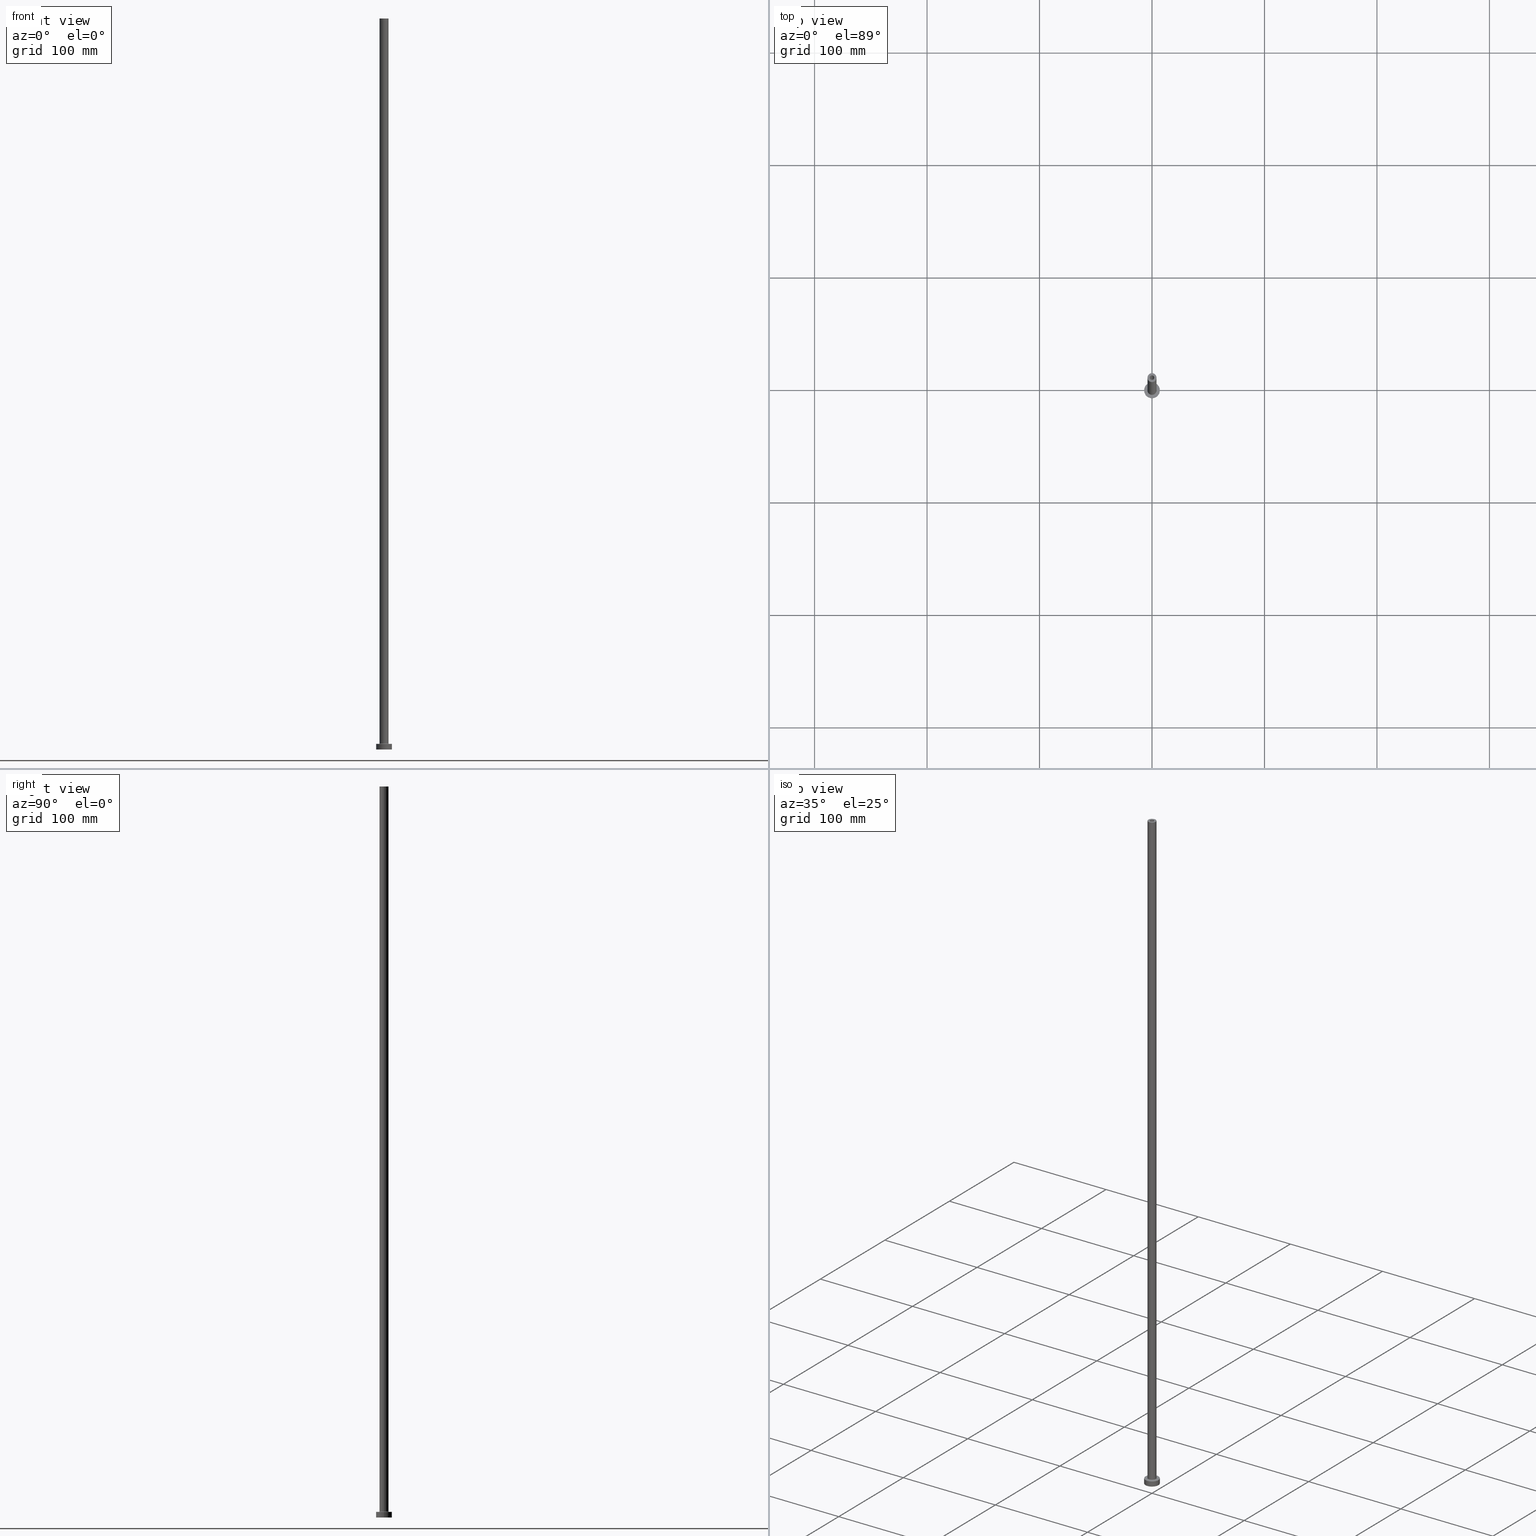
[diagram: canonical four-view strip — front | top / right | iso, engineering-drawing reading convention]
A machine part, canonical four-view strip (front | top / right | iso — engineering-drawing reading convention). The complete STEP part file that produces these views, byte-faithful:
ISO-10303-21;
HEADER;
FILE_DESCRIPTION (( 'STEP AP203' ),
    '1' );
FILE_NAME ('ee7d.STEP',
    '2023-02-13T17:36:11',
    ( '' ),
    ( '' ),
    'SwSTEP 2.0',
    'SolidWorks 2019',
    '' );
FILE_SCHEMA (( 'CONFIG_CONTROL_DESIGN' ));
ENDSEC;

DATA;
#1 = DIRECTION ( 'NONE',  ( -1.000000000000000000, 0.000000000000000000, 0.000000000000000000 ) ) ;
#2 = DIRECTION ( 'NONE',  ( 0.000000000000000000, 0.000000000000000000, 1.000000000000000000 ) ) ;
#3 = EDGE_CURVE ( 'NONE', #428, #133, #59, .T. ) ;
#4 = AXIS2_PLACEMENT_3D ( 'NONE', #30, #165, #167 ) ;
#5 = CARTESIAN_POINT ( 'NONE',  ( 0.000000000000000000, 0.000000000000000000, 650.0000000000000000 ) ) ;
#6 = EDGE_LOOP ( 'NONE', ( #282, #451, #205, #390 ) ) ;
#7 = AXIS2_PLACEMENT_3D ( 'NONE', #209, #396, #32 ) ;
#8 = CC_DESIGN_PERSON_AND_ORGANIZATION_ASSIGNMENT ( #121, #40, ( #325 ) ) ;
#9 = APPROVAL_STATUS ( 'not_yet_approved' ) ;
#10 = LINE ( 'NONE', #147, #67 ) ;
#11 = DATE_AND_TIME ( #42, #324 ) ;
#12 = CALENDAR_DATE ( 2023, 13, 2 ) ;
#13 = VECTOR ( 'NONE', #376, 1000.000000000000000 ) ;
#14 = ORIENTED_EDGE ( 'NONE', *, *, #288, .F. ) ;
#15 = DIRECTION ( 'NONE',  ( -1.000000000000000000, 1.224646799147351482E-16, 0.000000000000000000 ) ) ;
#16 = PERSON_AND_ORGANIZATION_ROLE ( 'design_owner' ) ;
#17 = CIRCLE ( 'NONE', #146, 4.000000000000000000 ) ;
#18 = ORIENTED_EDGE ( 'NONE', *, *, #180, .T. ) ;
#19 = PERSON ( 'NEUR�EN�', 'NEUR�EN�', 'NEUR�EN�', ('NEUR�EN�'), ('NEUR�EN�'), ('NEUR�EN�') ) ;
#20 = ORIENTED_EDGE ( 'NONE', *, *, #276, .T. ) ;
#21 = EDGE_CURVE ( 'NONE', #195, #202, #411, .T. ) ;
#22 = DATE_AND_TIME ( #379, #255 ) ;
#23 = CIRCLE ( 'NONE', #284, 2.149999999999999911 ) ;
#24 = FACE_OUTER_BOUND ( 'NONE', #228, .T. ) ;
#25 = FACE_OUTER_BOUND ( 'NONE', #225, .T. ) ;
#26 = CARTESIAN_POINT ( 'NONE',  ( 0.000000000000000000, 0.000000000000000000, 605.0000000000000000 ) ) ;
#27 = ORIENTED_EDGE ( 'NONE', *, *, #3, .T. ) ;
#28 = CYLINDRICAL_SURFACE ( 'NONE', #295, 2.000000000000000000 ) ;
#29 = CIRCLE ( 'NONE', #291, 7.000000000000000000 ) ;
#30 = CARTESIAN_POINT ( 'NONE',  ( 0.000000000000000000, 0.000000000000000000, 5.499999999999949374 ) ) ;
#31 = ORIENTED_EDGE ( 'NONE', *, *, #128, .T. ) ;
#32 = DIRECTION ( 'NONE',  ( 1.000000000000000000, 0.000000000000000000, 0.000000000000000000 ) ) ;
#33 = EDGE_CURVE ( 'NONE', #133, #293, #457, .T. ) ;
#34 = ORIENTED_EDGE ( 'NONE', *, *, #3, .F. ) ;
#35 = VERTEX_POINT ( 'NONE', #188 ) ;
#36 = CARTESIAN_POINT ( 'NONE',  ( 0.000000000000000000, 0.000000000000000000, 650.0000000000000000 ) ) ;
#37 = EDGE_CURVE ( 'NONE', #38, #195, #254, .T. ) ;
#38 = VERTEX_POINT ( 'NONE', #444 ) ;
#39 = AXIS2_PLACEMENT_3D ( 'NONE', #337, #130, #127 ) ;
#40 = PERSON_AND_ORGANIZATION_ROLE ( 'classification_officer' ) ;
#41 = FACE_OUTER_BOUND ( 'NONE', #224, .T. ) ;
#42 = CALENDAR_DATE ( 2023, 13, 2 ) ;
#43 = ADVANCED_FACE ( 'NONE', ( #24 ), #194, .F. ) ;
#44 = DIRECTION ( 'NONE',  ( -1.000000000000000000, 0.000000000000000000, 0.000000000000000000 ) ) ;
#45 = PERSON_AND_ORGANIZATION ( #19, #308 ) ;
#46 = DIRECTION ( 'NONE',  ( 1.000000000000000000, 0.000000000000000000, 0.000000000000000000 ) ) ;
#47 = DIRECTION ( 'NONE',  ( 1.000000000000000000, 0.000000000000000000, -0.000000000000000000 ) ) ;
#48 = APPLICATION_CONTEXT ( 'configuration controlled 3d designs of mechanical parts and assemblies' ) ;
#49 = DIRECTION ( 'NONE',  ( 0.000000000000000000, 0.000000000000000000, 1.000000000000000000 ) ) ;
#50 = ORIENTED_EDGE ( 'NONE', *, *, #394, .T. ) ;
#51 = EDGE_CURVE ( 'NONE', #174, #435, #29, .T. ) ;
#52 = DIRECTION ( 'NONE',  ( 0.000000000000000000, 0.000000000000000000, 1.000000000000000000 ) ) ;
#53 =( NAMED_UNIT ( * ) PLANE_ANGLE_UNIT ( ) SI_UNIT ( $, .RADIAN. ) );
#54 = CARTESIAN_POINT ( 'NONE',  ( 2.149999999999999911, 2.632990618166809235E-16, 605.0000000000000000 ) ) ;
#55 = ORIENTED_EDGE ( 'NONE', *, *, #431, .F. ) ;
#56 = PRODUCT ( 'ee7d', 'ee7d', '', ( #312 ) ) ;
#57 = AXIS2_PLACEMENT_3D ( 'NONE', #156, #310, #262 ) ;
#58 = TOROIDAL_SURFACE ( 'NONE', #7, 4.500000000000000888, 0.5000000000000000000 ) ;
#59 = LINE ( 'NONE', #263, #432 ) ;
#60 = ORIENTED_EDGE ( 'NONE', *, *, #51, .T. ) ;
#61 = ORIENTED_EDGE ( 'NONE', *, *, #163, .T. ) ;
#62 = ADVANCED_FACE ( 'NONE', ( #285 ), #207, .T. ) ;
#63 = VECTOR ( 'NONE', #326, 1000.000000000000000 ) ;
#64 = ORIENTED_EDGE ( 'NONE', *, *, #177, .F. ) ;
#65 = DATE_AND_TIME ( #234, #402 ) ;
#66 = ORIENTED_EDGE ( 'NONE', *, *, #103, .T. ) ;
#67 = VECTOR ( 'NONE', #300, 1000.000000000000000 ) ;
#68 = CARTESIAN_POINT ( 'NONE',  ( 0.000000000000000000, 0.000000000000000000, 0.000000000000000000 ) ) ;
#69 = CIRCLE ( 'NONE', #125, 2.000000000000000000 ) ;
#70 = CARTESIAN_POINT ( 'NONE',  ( -2.149999999999999911, 0.000000000000000000, 0.000000000000000000 ) ) ;
#71 = ORIENTED_EDGE ( 'NONE', *, *, #431, .T. ) ;
#72 = DIRECTION ( 'NONE',  ( -0.000000000000000000, -0.000000000000000000, -1.000000000000000000 ) ) ;
#73 = CARTESIAN_POINT ( 'NONE',  ( -4.500000000000000888, 5.510910596163088569E-16, 4.999999999999975131 ) ) ;
#74 = CARTESIAN_POINT ( 'NONE',  ( 0.000000000000000000, 0.000000000000000000, 605.0000000000000000 ) ) ;
#75 = EDGE_CURVE ( 'NONE', #133, #355, #404, .T. ) ;
#76 = DIRECTION ( 'NONE',  ( -0.000000000000000000, -0.000000000000000000, -1.000000000000000000 ) ) ;
#77 = DIRECTION ( 'NONE',  ( 0.000000000000000000, 0.000000000000000000, -1.000000000000000000 ) ) ;
#78 = TOROIDAL_SURFACE ( 'NONE', #403, 4.500000000000000888, 0.5000000000000000000 ) ;
#79 = DATE_AND_TIME ( #12, #380 ) ;
#80 = EDGE_CURVE ( 'NONE', #38, #102, #427, .T. ) ;
#81 = CLOSED_SHELL ( 'NONE', ( #252, #352, #321, #62, #417, #311, #158, #137, #296, #450, #219, #43, #115, #366 ) ) ;
#82 = SHAPE_DEFINITION_REPRESENTATION ( #179, #186 ) ;
#83 = DIRECTION ( 'NONE',  ( 0.000000000000000000, 0.000000000000000000, 1.000000000000000000 ) ) ;
#84 = CIRCLE ( 'NONE', #370, 4.500000000000000888 ) ;
#85 = DATE_AND_TIME ( #259, #189 ) ;
#86 = CARTESIAN_POINT ( 'NONE',  ( 0.000000000000000000, 0.000000000000000000, 0.000000000000000000 ) ) ;
#87 = ORIENTED_EDGE ( 'NONE', *, *, #33, .F. ) ;
#88 = CC_DESIGN_PERSON_AND_ORGANIZATION_ASSIGNMENT ( #439, #111, ( #298 ) ) ;
#89 = LINE ( 'NONE', #149, #13 ) ;
#90 = AXIS2_PLACEMENT_3D ( 'NONE', #277, #446, #97 ) ;
#91 = CARTESIAN_POINT ( 'NONE',  ( 0.000000000000000000, 0.000000000000000000, 5.000000000000000000 ) ) ;
#92 =( LENGTH_UNIT ( ) NAMED_UNIT ( * ) SI_UNIT ( .MILLI., .METRE. ) );
#93 = ORIENTED_EDGE ( 'NONE', *, *, #200, .F. ) ;
#94 = EDGE_CURVE ( 'NONE', #355, #35, #328, .T. ) ;
#95 = VERTEX_POINT ( 'NONE', #292 ) ;
#96 = FACE_OUTER_BOUND ( 'NONE', #159, .T. ) ;
#97 = DIRECTION ( 'NONE',  ( 1.000000000000000000, 0.000000000000000000, 0.000000000000000000 ) ) ;
#98 = ORIENTED_EDGE ( 'NONE', *, *, #257, .F. ) ;
#99 = DIRECTION ( 'NONE',  ( 1.000000000000000000, 0.000000000000000000, 0.000000000000000000 ) ) ;
#100 = ORIENTED_EDGE ( 'NONE', *, *, #288, .T. ) ;
#101 = AXIS2_PLACEMENT_3D ( 'NONE', #110, #72, #141 ) ;
#102 = VERTEX_POINT ( 'NONE', #70 ) ;
#103 = EDGE_CURVE ( 'NONE', #440, #459, #362, .T. ) ;
#104 = DIRECTION ( 'NONE',  ( 1.000000000000000000, 0.000000000000000000, 0.000000000000000000 ) ) ;
#105 = DIRECTION ( 'NONE',  ( 1.000000000000000000, 0.000000000000000000, 0.000000000000000000 ) ) ;
#106 = FACE_OUTER_BOUND ( 'NONE', #350, .T. ) ;
#107 = DIRECTION ( 'NONE',  ( 1.000000000000000000, 0.000000000000000000, 0.000000000000000000 ) ) ;
#108 = CC_DESIGN_APPROVAL ( #407, ( #359 ) ) ;
#109 = EDGE_LOOP ( 'NONE', ( #18, #196, #131, #64 ) ) ;
#110 = CARTESIAN_POINT ( 'NONE',  ( 0.000000000000000000, 0.000000000000000000, 5.000000000000000000 ) ) ;
#111 = PERSON_AND_ORGANIZATION_ROLE ( 'creator' ) ;
#112 = DIRECTION ( 'NONE',  ( 0.000000000000000000, 0.000000000000000000, 1.000000000000000000 ) ) ;
#113 = CARTESIAN_POINT ( 'NONE',  ( 0.000000000000000000, 0.000000000000000000, 5.000000000000000000 ) ) ;
#114 = AXIS2_PLACEMENT_3D ( 'NONE', #430, #261, #105 ) ;
#115 = ADVANCED_FACE ( 'NONE', ( #245, #357 ), #433, .F. ) ;
#116 = APPROVAL_ROLE ( '' ) ;
#117 = PERSON_AND_ORGANIZATION_ROLE ( 'design_supplier' ) ;
#118 = EDGE_CURVE ( 'NONE', #293, #35, #391, .T. ) ;
#119 = DIRECTION ( 'NONE',  ( 0.000000000000000000, 0.000000000000000000, -1.000000000000000000 ) ) ;
#120 = CIRCLE ( 'NONE', #426, 7.000000000000000000 ) ;
#121 = PERSON_AND_ORGANIZATION ( #19, #308 ) ;
#122 = LINE ( 'NONE', #343, #448 ) ;
#123 = CARTESIAN_POINT ( 'NONE',  ( 0.000000000000000000, 0.000000000000000000, 611.0811183182042896 ) ) ;
#124 = ORIENTED_EDGE ( 'NONE', *, *, #455, .F. ) ;
#125 = AXIS2_PLACEMENT_3D ( 'NONE', #26, #183, #316 ) ;
#126 = VERTEX_POINT ( 'NONE', #266 ) ;
#127 = DIRECTION ( 'NONE',  ( 1.000000000000000000, 0.000000000000000000, 0.000000000000000000 ) ) ;
#128 = EDGE_CURVE ( 'NONE', #237, #355, #122, .T. ) ;
#129 = COORDINATED_UNIVERSAL_TIME_OFFSET ( 1, 0, .AHEAD. ) ;
#130 = DIRECTION ( 'NONE',  ( 0.000000000000000000, 0.000000000000000000, 1.000000000000000000 ) ) ;
#131 = ORIENTED_EDGE ( 'NONE', *, *, #163, .F. ) ;
#132 = APPLICATION_PROTOCOL_DEFINITION ( 'international standard', 'config_control_design', 1994, #48 ) ;
#133 = VERTEX_POINT ( 'NONE', #369 ) ;
#134 = DIRECTION ( 'NONE',  ( 1.000000000000000000, 0.000000000000000000, 0.000000000000000000 ) ) ;
#135 = LINE ( 'NONE', #299, #279 ) ;
#136 = FACE_OUTER_BOUND ( 'NONE', #109, .T. ) ;
#137 = ADVANCED_FACE ( 'NONE', ( #272, #409 ), #339, .F. ) ;
#138 = CARTESIAN_POINT ( 'NONE',  ( 0.000000000000000000, 0.000000000000000000, 650.0000000000000000 ) ) ;
#139 = CARTESIAN_POINT ( 'NONE',  ( 0.000000000000000000, 0.000000000000000000, 5.499999999999949374 ) ) ;
#140 = CARTESIAN_POINT ( 'NONE',  ( 0.000000000000000000, 0.000000000000000000, 0.000000000000000000 ) ) ;
#141 = DIRECTION ( 'NONE',  ( -1.000000000000000000, 0.000000000000000000, 0.000000000000000000 ) ) ;
#142 = AXIS2_PLACEMENT_3D ( 'NONE', #5, #354, #1 ) ;
#143 = CARTESIAN_POINT ( 'NONE',  ( 2.149999999999999911, 2.632990618166809235E-16, 0.000000000000000000 ) ) ;
#144 = EDGE_LOOP ( 'NONE', ( #416, #373, #27, #309 ) ) ;
#145 = DIRECTION ( 'NONE',  ( -1.000000000000000000, 0.000000000000000000, 0.000000000000000000 ) ) ;
#146 = AXIS2_PLACEMENT_3D ( 'NONE', #139, #287, #104 ) ;
#147 = CARTESIAN_POINT ( 'NONE',  ( 7.000000000000000000, 8.572527594031473190E-16, 5.000000000000000000 ) ) ;
#148 = CARTESIAN_POINT ( 'NONE',  ( 0.000000000000000000, 0.000000000000000000, 5.499999999999949374 ) ) ;
#149 = CARTESIAN_POINT ( 'NONE',  ( -2.000000000000000000, 0.000000000000000000, 650.0000000000000000 ) ) ;
#150 = COORDINATED_UNIVERSAL_TIME_OFFSET ( 1, 0, .AHEAD. ) ;
#151 = ORIENTED_EDGE ( 'NONE', *, *, #329, .T. ) ;
#152 = AXIS2_PLACEMENT_3D ( 'NONE', #36, #220, #175 ) ;
#153 = PERSON_AND_ORGANIZATION ( #19, #308 ) ;
#154 = DIRECTION ( 'NONE',  ( 1.000000000000000000, 0.000000000000000000, 0.000000000000000000 ) ) ;
#155 = ORIENTED_EDGE ( 'NONE', *, *, #80, .T. ) ;
#156 = CARTESIAN_POINT ( 'NONE',  ( 0.000000000000000000, 0.000000000000000000, 650.0000000000000000 ) ) ;
#157 = DATE_TIME_ROLE ( 'creation_date' ) ;
#158 = ADVANCED_FACE ( 'NONE', ( #302, #218 ), #413, .T. ) ;
#159 = EDGE_LOOP ( 'NONE', ( #377, #244 ) ) ;
#160 = CIRCLE ( 'NONE', #39, 2.000000000000000000 ) ;
#161 = DIRECTION ( 'NONE',  ( 0.000000000000000000, -1.000000000000000000, 0.000000000000000000 ) ) ;
#162 = CYLINDRICAL_SURFACE ( 'NONE', #264, 2.149999999999999911 ) ;
#163 = EDGE_CURVE ( 'NONE', #346, #412, #69, .T. ) ;
#164 = ORIENTED_EDGE ( 'NONE', *, *, #276, .F. ) ;
#165 = DIRECTION ( 'NONE',  ( 0.000000000000000000, 0.000000000000000000, 1.000000000000000000 ) ) ;
#166 = CC_DESIGN_APPROVAL ( #436, ( #325 ) ) ;
#167 = DIRECTION ( 'NONE',  ( 1.000000000000000000, 0.000000000000000000, 0.000000000000000000 ) ) ;
#168 = DIRECTION ( 'NONE',  ( 1.000000000000000000, 0.000000000000000000, 0.000000000000000000 ) ) ;
#169 = DIRECTION ( 'NONE',  ( 1.000000000000000000, 0.000000000000000000, 0.000000000000000000 ) ) ;
#170 = ORIENTED_EDGE ( 'NONE', *, *, #21, .F. ) ;
#171 = DIRECTION ( 'NONE',  ( 1.000000000000000000, 0.000000000000000000, 0.000000000000000000 ) ) ;
#172 = EDGE_LOOP ( 'NONE', ( #98, #31, #199, #34 ) ) ;
#173 = UNCERTAINTY_MEASURE_WITH_UNIT (LENGTH_MEASURE( 1.000000000000000082E-05 ), #92, 'distance_accuracy_value', 'NONE');
#174 = VERTEX_POINT ( 'NONE', #265 ) ;
#175 = DIRECTION ( 'NONE',  ( -1.000000000000000000, 0.000000000000000000, 0.000000000000000000 ) ) ;
#176 = SECURITY_CLASSIFICATION_LEVEL ( 'unclassified' ) ;
#177 = EDGE_CURVE ( 'NONE', #126, #346, #89, .T. ) ;
#178 = AXIS2_PLACEMENT_3D ( 'NONE', #74, #398, #317 ) ;
#179 = PRODUCT_DEFINITION_SHAPE ( 'NONE', 'NONE',  #359 ) ;
#180 = EDGE_CURVE ( 'NONE', #126, #95, #429, .T. ) ;
#181 = DIRECTION ( 'NONE',  ( -0.000000000000000000, -0.000000000000000000, -1.000000000000000000 ) ) ;
#182 = APPROVAL_STATUS ( 'not_yet_approved' ) ;
#183 = DIRECTION ( 'NONE',  ( 0.000000000000000000, 0.000000000000000000, 1.000000000000000000 ) ) ;
#184 = DESIGN_CONTEXT ( 'detailed design', #48, 'design' ) ;
#185 = ORIENTED_EDGE ( 'NONE', *, *, #75, .F. ) ;
#186 = ADVANCED_BREP_SHAPE_REPRESENTATION ( 'ee7d', ( #240, #221 ), #314 ) ;
#187 = DIRECTION ( 'NONE',  ( -0.000000000000000000, -0.000000000000000000, -1.000000000000000000 ) ) ;
#188 = CARTESIAN_POINT ( 'NONE',  ( 4.500000000000000888, 0.000000000000000000, 4.999999999999975131 ) ) ;
#189 = LOCAL_TIME ( 18, 36, 11.00000000000000000, #400 ) ;
#190 = PERSON_AND_ORGANIZATION_ROLE ( 'creator' ) ;
#191 = DIRECTION ( 'NONE',  ( 0.000000000000000000, 0.000000000000000000, 1.000000000000000000 ) ) ;
#192 = EDGE_CURVE ( 'NONE', #435, #440, #135, .T. ) ;
#193 = CARTESIAN_POINT ( 'NONE',  ( 0.000000000000000000, 0.000000000000000000, 650.0000000000000000 ) ) ;
#194 = CYLINDRICAL_SURFACE ( 'NONE', #353, 2.149999999999999911 ) ;
#195 = VERTEX_POINT ( 'NONE', #54 ) ;
#196 = ORIENTED_EDGE ( 'NONE', *, *, #401, .T. ) ;
#197 = APPROVAL_DATE_TIME ( #65, #407 ) ;
#198 = ORIENTED_EDGE ( 'NONE', *, *, #344, .F. ) ;
#199 = ORIENTED_EDGE ( 'NONE', *, *, #344, .T. ) ;
#200 = EDGE_CURVE ( 'NONE', #195, #38, #214, .T. ) ;
#201 = AXIS2_PLACEMENT_3D ( 'NONE', #405, #368, #46 ) ;
#202 = VERTEX_POINT ( 'NONE', #143 ) ;
#203 = CARTESIAN_POINT ( 'NONE',  ( 4.000000000000000000, 4.898587196589411843E-16, 650.0000000000000000 ) ) ;
#204 = CARTESIAN_POINT ( 'NONE',  ( 4.500000000000000888, 0.000000000000000000, 5.499999999999949374 ) ) ;
#205 = ORIENTED_EDGE ( 'NONE', *, *, #177, .T. ) ;
#206 = CARTESIAN_POINT ( 'NONE',  ( -2.000000000000000000, 0.000000000000000000, 605.0000000000000000 ) ) ;
#207 = CYLINDRICAL_SURFACE ( 'NONE', #142, 4.000000000000000000 ) ;
#208 = ORIENTED_EDGE ( 'NONE', *, *, #51, .F. ) ;
#209 = CARTESIAN_POINT ( 'NONE',  ( 0.000000000000000000, 0.000000000000000000, 5.499999999999949374 ) ) ;
#210 = AXIS2_PLACEMENT_3D ( 'NONE', #86, #49, #47 ) ;
#211 = AXIS2_PLACEMENT_3D ( 'NONE', #318, #238, #387 ) ;
#212 = CC_DESIGN_DATE_AND_TIME_ASSIGNMENT ( #79, #406, ( #325 ) ) ;
#213 = AXIS2_PLACEMENT_3D ( 'NONE', #445, #223, #374 ) ;
#214 = CIRCLE ( 'NONE', #289, 2.149999999999999911 ) ;
#215 = LINE ( 'NONE', #335, #397 ) ;
#216 = AXIS2_PLACEMENT_3D ( 'NONE', #307, #303, #15 ) ;
#217 = COORDINATED_UNIVERSAL_TIME_OFFSET ( 1, 0, .AHEAD. ) ;
#218 = FACE_OUTER_BOUND ( 'NONE', #319, .T. ) ;
#219 = ADVANCED_FACE ( 'NONE', ( #322 ), #78, .F. ) ;
#220 = DIRECTION ( 'NONE',  ( 0.000000000000000000, 0.000000000000000000, -1.000000000000000000 ) ) ;
#221 = AXIS2_PLACEMENT_3D ( 'NONE', #248, #112, #418 ) ;
#222 = ORIENTED_EDGE ( 'NONE', *, *, #37, .F. ) ;
#223 = DIRECTION ( 'NONE',  ( 0.000000000000000000, 0.000000000000000000, 1.000000000000000000 ) ) ;
#224 = EDGE_LOOP ( 'NONE', ( #208, #71, #399, #449 ) ) ;
#225 = EDGE_LOOP ( 'NONE', ( #185, #453, #164, #395 ) ) ;
#226 = CC_DESIGN_DATE_AND_TIME_ASSIGNMENT ( #22, #157, ( #359 ) ) ;
#227 = CARTESIAN_POINT ( 'NONE',  ( 0.000000000000000000, 0.000000000000000000, 5.000000000000000000 ) ) ;
#228 = EDGE_LOOP ( 'NONE', ( #170, #330, #155, #151 ) ) ;
#229 = CARTESIAN_POINT ( 'NONE',  ( -7.000000000000000000, 0.000000000000000000, 5.000000000000000000 ) ) ;
#230 = EDGE_LOOP ( 'NONE', ( #87, #198, #434, #386 ) ) ;
#231 = CIRCLE ( 'NONE', #114, 4.000000000000000000 ) ;
#232 = APPROVAL_ROLE ( '' ) ;
#233 = DIRECTION ( 'NONE',  ( -0.000000000000000000, -0.000000000000000000, -1.000000000000000000 ) ) ;
#234 = CALENDAR_DATE ( 2023, 13, 2 ) ;
#235 = DIRECTION ( 'NONE',  ( 0.000000000000000000, 0.000000000000000000, -1.000000000000000000 ) ) ;
#236 = EDGE_CURVE ( 'NONE', #428, #237, #456, .T. ) ;
#237 = VERTEX_POINT ( 'NONE', #203 ) ;
#238 = DIRECTION ( 'NONE',  ( 0.000000000000000000, 0.000000000000000000, 1.000000000000000000 ) ) ;
#239 = DIRECTION ( 'NONE',  ( -0.000000000000000000, -0.000000000000000000, -1.000000000000000000 ) ) ;
#240 = MANIFOLD_SOLID_BREP ( 'Odebrat vysunut�m4', #81 ) ;
#241 = CARTESIAN_POINT ( 'NONE',  ( 4.000000000000000000, 4.898587196589411843E-16, 5.499999999999949374 ) ) ;
#242 = ORIENTED_EDGE ( 'NONE', *, *, #37, .T. ) ;
#243 = CARTESIAN_POINT ( 'NONE',  ( -2.149999999999999911, 0.000000000000000000, 611.0811183182042896 ) ) ;
#244 = ORIENTED_EDGE ( 'NONE', *, *, #257, .T. ) ;
#245 = FACE_BOUND ( 'NONE', #383, .T. ) ;
#246 = CYLINDRICAL_SURFACE ( 'NONE', #101, 7.000000000000000000 ) ;
#247 = FACE_OUTER_BOUND ( 'NONE', #144, .T. ) ;
#248 = CARTESIAN_POINT ( 'NONE',  ( 0.000000000000000000, 0.000000000000000000, 0.000000000000000000 ) ) ;
#249 = AXIS2_PLACEMENT_3D ( 'NONE', #351, #294, #320 ) ;
#250 = ORIENTED_EDGE ( 'NONE', *, *, #329, .F. ) ;
#251 = CARTESIAN_POINT ( 'NONE',  ( 0.000000000000000000, 0.000000000000000000, 5.000000000000000000 ) ) ;
#252 = ADVANCED_FACE ( 'NONE', ( #136 ), #28, .F. ) ;
#253 = CYLINDRICAL_SURFACE ( 'NONE', #152, 2.000000000000000000 ) ;
#254 = CIRCLE ( 'NONE', #90, 2.149999999999999911 ) ;
#255 = LOCAL_TIME ( 18, 36, 11.00000000000000000, #271 ) ;
#256 = DIRECTION ( 'NONE',  ( -0.000000000000000000, -0.000000000000000000, -1.000000000000000000 ) ) ;
#257 = EDGE_CURVE ( 'NONE', #237, #428, #231, .T. ) ;
#258 = VECTOR ( 'NONE', #235, 1000.000000000000000 ) ;
#259 = CALENDAR_DATE ( 2023, 13, 2 ) ;
#260 = DIRECTION ( 'NONE',  ( 1.000000000000000000, 0.000000000000000000, -0.000000000000000000 ) ) ;
#261 = DIRECTION ( 'NONE',  ( 0.000000000000000000, 0.000000000000000000, 1.000000000000000000 ) ) ;
#262 = DIRECTION ( 'NONE',  ( 1.000000000000000000, 0.000000000000000000, -0.000000000000000000 ) ) ;
#263 = CARTESIAN_POINT ( 'NONE',  ( -4.000000000000000000, 0.000000000000000000, 650.0000000000000000 ) ) ;
#264 = AXIS2_PLACEMENT_3D ( 'NONE', #315, #281, #425 ) ;
#265 = CARTESIAN_POINT ( 'NONE',  ( 7.000000000000000000, 8.572527594031473190E-16, 5.000000000000000000 ) ) ;
#266 = CARTESIAN_POINT ( 'NONE',  ( -2.000000000000000000, 0.000000000000000000, 650.0000000000000000 ) ) ;
#267 = DIRECTION ( 'NONE',  ( -1.000000000000000000, 0.000000000000000000, 0.000000000000000000 ) ) ;
#268 = APPLICATION_CONTEXT ( 'configuration controlled 3d designs of mechanical parts and assemblies' ) ;
#269 = AXIS2_PLACEMENT_3D ( 'NONE', #227, #191, #260 ) ;
#270 = PRODUCT_RELATED_PRODUCT_CATEGORY ( 'detail', '', ( #56 ) ) ;
#271 = COORDINATED_UNIVERSAL_TIME_OFFSET ( 1, 0, .AHEAD. ) ;
#272 = FACE_BOUND ( 'NONE', #358, .T. ) ;
#273 = ORIENTED_EDGE ( 'NONE', *, *, #103, .F. ) ;
#274 = ORIENTED_EDGE ( 'NONE', *, *, #80, .F. ) ;
#275 = APPROVAL_PERSON_ORGANIZATION ( #45, #436, #116 ) ;
#276 = EDGE_CURVE ( 'NONE', #35, #293, #84, .T. ) ;
#277 = CARTESIAN_POINT ( 'NONE',  ( 0.000000000000000000, 0.000000000000000000, 605.0000000000000000 ) ) ;
#278 = DIRECTION ( 'NONE',  ( 0.000000000000000000, 0.000000000000000000, 1.000000000000000000 ) ) ;
#279 = VECTOR ( 'NONE', #181, 1000.000000000000000 ) ;
#280 = CARTESIAN_POINT ( 'NONE',  ( 0.000000000000000000, 0.000000000000000000, 5.000000000000000000 ) ) ;
#281 = DIRECTION ( 'NONE',  ( 0.000000000000000000, 0.000000000000000000, -1.000000000000000000 ) ) ;
#282 = ORIENTED_EDGE ( 'NONE', *, *, #401, .F. ) ;
#283 = DIRECTION ( 'NONE',  ( 0.000000000000000000, 0.000000000000000000, -1.000000000000000000 ) ) ;
#284 = AXIS2_PLACEMENT_3D ( 'NONE', #68, #323, #460 ) ;
#285 = FACE_OUTER_BOUND ( 'NONE', #172, .T. ) ;
#286 = ORIENTED_EDGE ( 'NONE', *, *, #180, .F. ) ;
#287 = DIRECTION ( 'NONE',  ( 0.000000000000000000, 0.000000000000000000, 1.000000000000000000 ) ) ;
#288 = EDGE_CURVE ( 'NONE', #435, #174, #120, .T. ) ;
#289 = AXIS2_PLACEMENT_3D ( 'NONE', #382, #349, #169 ) ;
#290 = DIRECTION ( 'NONE',  ( 0.000000000000000000, 0.000000000000000000, 1.000000000000000000 ) ) ;
#291 = AXIS2_PLACEMENT_3D ( 'NONE', #91, #52, #134 ) ;
#292 = CARTESIAN_POINT ( 'NONE',  ( 2.000000000000000000, 2.449293598294706414E-16, 650.0000000000000000 ) ) ;
#293 = VERTEX_POINT ( 'NONE', #73 ) ;
#294 = DIRECTION ( 'NONE',  ( 0.000000000000000000, 0.000000000000000000, 1.000000000000000000 ) ) ;
#295 = AXIS2_PLACEMENT_3D ( 'NONE', #138, #283, #392 ) ;
#296 = ADVANCED_FACE ( 'NONE', ( #247 ), #414, .T. ) ;
#297 = CYLINDRICAL_SURFACE ( 'NONE', #410, 7.000000000000000000 ) ;
#298 = PRODUCT_DEFINITION_FORMATION_WITH_SPECIFIED_SOURCE ( 'LIBOVOLN�', '', #56, .NOT_KNOWN. ) ;
#299 = CARTESIAN_POINT ( 'NONE',  ( -7.000000000000000000, 0.000000000000000000, 5.000000000000000000 ) ) ;
#300 = DIRECTION ( 'NONE',  ( -0.000000000000000000, -0.000000000000000000, -1.000000000000000000 ) ) ;
#301 = AXIS2_PLACEMENT_3D ( 'NONE', #140, #290, #348 ) ;
#302 = FACE_BOUND ( 'NONE', #437, .T. ) ;
#303 = DIRECTION ( 'NONE',  ( 1.224646799147353207E-16, 1.000000000000000000, -0.000000000000000000 ) ) ;
#304 = FACE_BOUND ( 'NONE', #347, .T. ) ;
#305 = PERSON_AND_ORGANIZATION ( #19, #308 ) ;
#306 = EDGE_CURVE ( 'NONE', #412, #346, #454, .T. ) ;
#307 = CARTESIAN_POINT ( 'NONE',  ( -4.500000000000000888, 5.510910596163089556E-16, 5.499999999999949374 ) ) ;
#308 = ORGANIZATION ( 'NEUR�EN�', 'NEUR�EN�', '' ) ;
#309 = ORIENTED_EDGE ( 'NONE', *, *, #75, .T. ) ;
#310 = DIRECTION ( 'NONE',  ( 0.000000000000000000, 0.000000000000000000, 1.000000000000000000 ) ) ;
#311 = ADVANCED_FACE ( 'NONE', ( #106 ), #246, .T. ) ;
#312 = MECHANICAL_CONTEXT ( 'NONE', #268, 'mechanical' ) ;
#313 = CARTESIAN_POINT ( 'NONE',  ( -7.000000000000000000, 0.000000000000000000, 0.000000000000000000 ) ) ;
#314 =( GEOMETRIC_REPRESENTATION_CONTEXT ( 3 ) GLOBAL_UNCERTAINTY_ASSIGNED_CONTEXT ( ( #173 ) ) GLOBAL_UNIT_ASSIGNED_CONTEXT ( ( #92, #53, #452 ) ) REPRESENTATION_CONTEXT ( 'NONE', 'WORKASPACE' ) );
#315 = CARTESIAN_POINT ( 'NONE',  ( 0.000000000000000000, 0.000000000000000000, 611.0811183182042896 ) ) ;
#316 = DIRECTION ( 'NONE',  ( 1.000000000000000000, 0.000000000000000000, 0.000000000000000000 ) ) ;
#317 = DIRECTION ( 'NONE',  ( 1.000000000000000000, 0.000000000000000000, -0.000000000000000000 ) ) ;
#318 = CARTESIAN_POINT ( 'NONE',  ( 0.000000000000000000, 0.000000000000000000, 650.0000000000000000 ) ) ;
#319 = EDGE_LOOP ( 'NONE', ( #100, #60 ) ) ;
#320 = DIRECTION ( 'NONE',  ( 1.000000000000000000, 0.000000000000000000, 0.000000000000000000 ) ) ;
#321 = ADVANCED_FACE ( 'NONE', ( #25 ), #58, .F. ) ;
#322 = FACE_OUTER_BOUND ( 'NONE', #230, .T. ) ;
#323 = DIRECTION ( 'NONE',  ( -0.000000000000000000, -0.000000000000000000, -1.000000000000000000 ) ) ;
#324 = LOCAL_TIME ( 18, 36, 11.00000000000000000, #150 ) ;
#325 = SECURITY_CLASSIFICATION ( '', '', #176 ) ;
#326 = DIRECTION ( 'NONE',  ( 0.000000000000000000, 0.000000000000000000, -1.000000000000000000 ) ) ;
#327 = CARTESIAN_POINT ( 'NONE',  ( 0.000000000000000000, 0.000000000000000000, 5.000000000000000000 ) ) ;
#328 = CIRCLE ( 'NONE', #385, 0.5000000000000004441 ) ;
#329 = EDGE_CURVE ( 'NONE', #102, #202, #23, .T. ) ;
#330 = ORIENTED_EDGE ( 'NONE', *, *, #200, .T. ) ;
#331 = CIRCLE ( 'NONE', #213, 7.000000000000000000 ) ;
#332 = APPROVAL_DATE_TIME ( #11, #436 ) ;
#333 = CARTESIAN_POINT ( 'NONE',  ( -4.000000000000000000, 0.000000000000000000, 650.0000000000000000 ) ) ;
#334 = APPROVAL_DATE_TIME ( #85, #338 ) ;
#335 = CARTESIAN_POINT ( 'NONE',  ( 2.000000000000000000, 2.449293598294706414E-16, 650.0000000000000000 ) ) ;
#336 = ORIENTED_EDGE ( 'NONE', *, *, #118, .T. ) ;
#337 = CARTESIAN_POINT ( 'NONE',  ( 0.000000000000000000, 0.000000000000000000, 650.0000000000000000 ) ) ;
#338 = APPROVAL ( #9, 'NEUR�EN�' ) ;
#339 = PLANE ( 'NONE',  #210 ) ;
#340 = CARTESIAN_POINT ( 'NONE',  ( 7.000000000000000000, 8.572527594031473190E-16, 0.000000000000000000 ) ) ;
#341 = PERSON_AND_ORGANIZATION ( #19, #308 ) ;
#342 = APPROVAL_PERSON_ORGANIZATION ( #153, #407, #232 ) ;
#343 = CARTESIAN_POINT ( 'NONE',  ( 4.000000000000000000, 4.898587196589411843E-16, 650.0000000000000000 ) ) ;
#344 = EDGE_CURVE ( 'NONE', #355, #133, #17, .T. ) ;
#345 = ORIENTED_EDGE ( 'NONE', *, *, #441, .F. ) ;
#346 = VERTEX_POINT ( 'NONE', #206 ) ;
#347 = EDGE_LOOP ( 'NONE', ( #286, #345 ) ) ;
#348 = DIRECTION ( 'NONE',  ( 1.000000000000000000, 0.000000000000000000, 0.000000000000000000 ) ) ;
#349 = DIRECTION ( 'NONE',  ( 0.000000000000000000, 0.000000000000000000, 1.000000000000000000 ) ) ;
#350 = EDGE_LOOP ( 'NONE', ( #55, #14, #363, #66 ) ) ;
#351 = CARTESIAN_POINT ( 'NONE',  ( 0.000000000000000000, 0.000000000000000000, 605.0000000000000000 ) ) ;
#352 = ADVANCED_FACE ( 'NONE', ( #361 ), #162, .F. ) ;
#353 = AXIS2_PLACEMENT_3D ( 'NONE', #123, #119, #267 ) ;
#354 = DIRECTION ( 'NONE',  ( -0.000000000000000000, -0.000000000000000000, -1.000000000000000000 ) ) ;
#355 = VERTEX_POINT ( 'NONE', #241 ) ;
#356 = DIRECTION ( 'NONE',  ( -0.000000000000000000, -0.000000000000000000, -1.000000000000000000 ) ) ;
#357 = FACE_OUTER_BOUND ( 'NONE', #378, .T. ) ;
#358 = EDGE_LOOP ( 'NONE', ( #250, #422 ) ) ;
#359 = PRODUCT_DEFINITION ( 'NEZN�M�', '', #298, #184 ) ;
#360 = ORIENTED_EDGE ( 'NONE', *, *, #21, .T. ) ;
#361 = FACE_OUTER_BOUND ( 'NONE', #420, .T. ) ;
#362 = CIRCLE ( 'NONE', #301, 7.000000000000000000 ) ;
#363 = ORIENTED_EDGE ( 'NONE', *, *, #192, .T. ) ;
#364 = APPROVAL_ROLE ( '' ) ;
#365 = AXIS2_PLACEMENT_3D ( 'NONE', #193, #356, #145 ) ;
#366 = ADVANCED_FACE ( 'NONE', ( #458 ), #253, .F. ) ;
#367 = CARTESIAN_POINT ( 'NONE',  ( 2.000000000000000000, 2.449293598294706414E-16, 605.0000000000000000 ) ) ;
#368 = DIRECTION ( 'NONE',  ( -0.000000000000000000, -0.000000000000000000, -1.000000000000000000 ) ) ;
#369 = CARTESIAN_POINT ( 'NONE',  ( -4.000000000000000000, 0.000000000000000000, 5.499999999999949374 ) ) ;
#370 = AXIS2_PLACEMENT_3D ( 'NONE', #251, #76, #168 ) ;
#371 = PLANE ( 'NONE',  #57 ) ;
#372 = CC_DESIGN_PERSON_AND_ORGANIZATION_ASSIGNMENT ( #447, #190, ( #359 ) ) ;
#373 = ORIENTED_EDGE ( 'NONE', *, *, #236, .F. ) ;
#374 = DIRECTION ( 'NONE',  ( 1.000000000000000000, 0.000000000000000000, 0.000000000000000000 ) ) ;
#375 = APPLICATION_PROTOCOL_DEFINITION ( 'international standard', 'config_control_design', 1994, #268 ) ;
#376 = DIRECTION ( 'NONE',  ( 0.000000000000000000, 0.000000000000000000, -1.000000000000000000 ) ) ;
#377 = ORIENTED_EDGE ( 'NONE', *, *, #236, .T. ) ;
#378 = EDGE_LOOP ( 'NONE', ( #222, #93 ) ) ;
#379 = CALENDAR_DATE ( 2023, 13, 2 ) ;
#380 = LOCAL_TIME ( 18, 36, 11.00000000000000000, #217 ) ;
#381 = EDGE_LOOP ( 'NONE', ( #273, #124 ) ) ;
#382 = CARTESIAN_POINT ( 'NONE',  ( 0.000000000000000000, 0.000000000000000000, 605.0000000000000000 ) ) ;
#383 = EDGE_LOOP ( 'NONE', ( #61, #415 ) ) ;
#384 = CARTESIAN_POINT ( 'NONE',  ( 2.149999999999999911, 2.632990618166809235E-16, 611.0811183182042896 ) ) ;
#385 = AXIS2_PLACEMENT_3D ( 'NONE', #204, #161, #393 ) ;
#386 = ORIENTED_EDGE ( 'NONE', *, *, #118, .F. ) ;
#387 = DIRECTION ( 'NONE',  ( 1.000000000000000000, 0.000000000000000000, 0.000000000000000000 ) ) ;
#388 = CIRCLE ( 'NONE', #201, 2.149999999999999911 ) ;
#389 = CC_DESIGN_PERSON_AND_ORGANIZATION_ASSIGNMENT ( #341, #16, ( #56 ) ) ;
#390 = ORIENTED_EDGE ( 'NONE', *, *, #306, .F. ) ;
#391 = CIRCLE ( 'NONE', #423, 4.500000000000000888 ) ;
#392 = DIRECTION ( 'NONE',  ( -1.000000000000000000, 0.000000000000000000, 0.000000000000000000 ) ) ;
#393 = DIRECTION ( 'NONE',  ( 0.000000000000000000, 0.000000000000000000, -1.000000000000000000 ) ) ;
#394 = EDGE_CURVE ( 'NONE', #202, #102, #388, .T. ) ;
#395 = ORIENTED_EDGE ( 'NONE', *, *, #94, .F. ) ;
#396 = DIRECTION ( 'NONE',  ( 0.000000000000000000, 0.000000000000000000, 1.000000000000000000 ) ) ;
#397 = VECTOR ( 'NONE', #77, 1000.000000000000000 ) ;
#398 = DIRECTION ( 'NONE',  ( 0.000000000000000000, 0.000000000000000000, 1.000000000000000000 ) ) ;
#399 = ORIENTED_EDGE ( 'NONE', *, *, #455, .T. ) ;
#400 = COORDINATED_UNIVERSAL_TIME_OFFSET ( 1, 0, .AHEAD. ) ;
#401 = EDGE_CURVE ( 'NONE', #95, #412, #215, .T. ) ;
#402 = LOCAL_TIME ( 18, 36, 11.00000000000000000, #129 ) ;
#403 = AXIS2_PLACEMENT_3D ( 'NONE', #148, #278, #99 ) ;
#404 = CIRCLE ( 'NONE', #4, 4.000000000000000000 ) ;
#405 = CARTESIAN_POINT ( 'NONE',  ( 0.000000000000000000, 0.000000000000000000, 0.000000000000000000 ) ) ;
#406 = DATE_TIME_ROLE ( 'classification_date' ) ;
#407 = APPROVAL ( #421, 'NEUR�EN�' ) ;
#408 = PERSON_AND_ORGANIZATION ( #19, #308 ) ;
#409 = FACE_OUTER_BOUND ( 'NONE', #381, .T. ) ;
#410 = AXIS2_PLACEMENT_3D ( 'NONE', #113, #256, #44 ) ;
#411 = LINE ( 'NONE', #384, #258 ) ;
#412 = VERTEX_POINT ( 'NONE', #367 ) ;
#413 = PLANE ( 'NONE',  #269 ) ;
#414 = CYLINDRICAL_SURFACE ( 'NONE', #365, 4.000000000000000000 ) ;
#415 = ORIENTED_EDGE ( 'NONE', *, *, #306, .T. ) ;
#416 = ORIENTED_EDGE ( 'NONE', *, *, #128, .F. ) ;
#417 = ADVANCED_FACE ( 'NONE', ( #41 ), #297, .T. ) ;
#418 = DIRECTION ( 'NONE',  ( 1.000000000000000000, 0.000000000000000000, 0.000000000000000000 ) ) ;
#419 = APPROVAL_PERSON_ORGANIZATION ( #305, #338, #364 ) ;
#420 = EDGE_LOOP ( 'NONE', ( #242, #360, #50, #274 ) ) ;
#421 = APPROVAL_STATUS ( 'not_yet_approved' ) ;
#422 = ORIENTED_EDGE ( 'NONE', *, *, #394, .F. ) ;
#423 = AXIS2_PLACEMENT_3D ( 'NONE', #280, #239, #171 ) ;
#424 = CC_DESIGN_PERSON_AND_ORGANIZATION_ASSIGNMENT ( #408, #117, ( #298 ) ) ;
#425 = DIRECTION ( 'NONE',  ( -1.000000000000000000, 0.000000000000000000, 0.000000000000000000 ) ) ;
#426 = AXIS2_PLACEMENT_3D ( 'NONE', #327, #2, #107 ) ;
#427 = LINE ( 'NONE', #243, #63 ) ;
#428 = VERTEX_POINT ( 'NONE', #333 ) ;
#429 = CIRCLE ( 'NONE', #442, 2.000000000000000000 ) ;
#430 = CARTESIAN_POINT ( 'NONE',  ( 0.000000000000000000, 0.000000000000000000, 650.0000000000000000 ) ) ;
#431 = EDGE_CURVE ( 'NONE', #174, #459, #10, .T. ) ;
#432 = VECTOR ( 'NONE', #233, 1000.000000000000000 ) ;
#433 = PLANE ( 'NONE',  #178 ) ;
#434 = ORIENTED_EDGE ( 'NONE', *, *, #94, .T. ) ;
#435 = VERTEX_POINT ( 'NONE', #229 ) ;
#436 = APPROVAL ( #182, 'NEUR�EN�' ) ;
#437 = EDGE_LOOP ( 'NONE', ( #20, #336 ) ) ;
#438 = CC_DESIGN_SECURITY_CLASSIFICATION ( #325, ( #298 ) ) ;
#439 = PERSON_AND_ORGANIZATION ( #19, #308 ) ;
#440 = VERTEX_POINT ( 'NONE', #313 ) ;
#441 = EDGE_CURVE ( 'NONE', #95, #126, #160, .T. ) ;
#442 = AXIS2_PLACEMENT_3D ( 'NONE', #443, #83, #154 ) ;
#443 = CARTESIAN_POINT ( 'NONE',  ( 0.000000000000000000, 0.000000000000000000, 650.0000000000000000 ) ) ;
#444 = CARTESIAN_POINT ( 'NONE',  ( -2.149999999999999911, 0.000000000000000000, 605.0000000000000000 ) ) ;
#445 = CARTESIAN_POINT ( 'NONE',  ( 0.000000000000000000, 0.000000000000000000, 0.000000000000000000 ) ) ;
#446 = DIRECTION ( 'NONE',  ( 0.000000000000000000, 0.000000000000000000, 1.000000000000000000 ) ) ;
#447 = PERSON_AND_ORGANIZATION ( #19, #308 ) ;
#448 = VECTOR ( 'NONE', #187, 1000.000000000000000 ) ;
#449 = ORIENTED_EDGE ( 'NONE', *, *, #192, .F. ) ;
#450 = ADVANCED_FACE ( 'NONE', ( #304, #96 ), #371, .T. ) ;
#451 = ORIENTED_EDGE ( 'NONE', *, *, #441, .T. ) ;
#452 =( NAMED_UNIT ( * ) SI_UNIT ( $, .STERADIAN. ) SOLID_ANGLE_UNIT ( ) );
#453 = ORIENTED_EDGE ( 'NONE', *, *, #33, .T. ) ;
#454 = CIRCLE ( 'NONE', #249, 2.000000000000000000 ) ;
#455 = EDGE_CURVE ( 'NONE', #459, #440, #331, .T. ) ;
#456 = CIRCLE ( 'NONE', #211, 4.000000000000000000 ) ;
#457 = CIRCLE ( 'NONE', #216, 0.5000000000000004441 ) ;
#458 = FACE_OUTER_BOUND ( 'NONE', #6, .T. ) ;
#459 = VERTEX_POINT ( 'NONE', #340 ) ;
#460 = DIRECTION ( 'NONE',  ( 1.000000000000000000, 0.000000000000000000, 0.000000000000000000 ) ) ;
#461 = CC_DESIGN_APPROVAL ( #338, ( #298 ) ) ;
ENDSEC;
END-ISO-10303-21;
